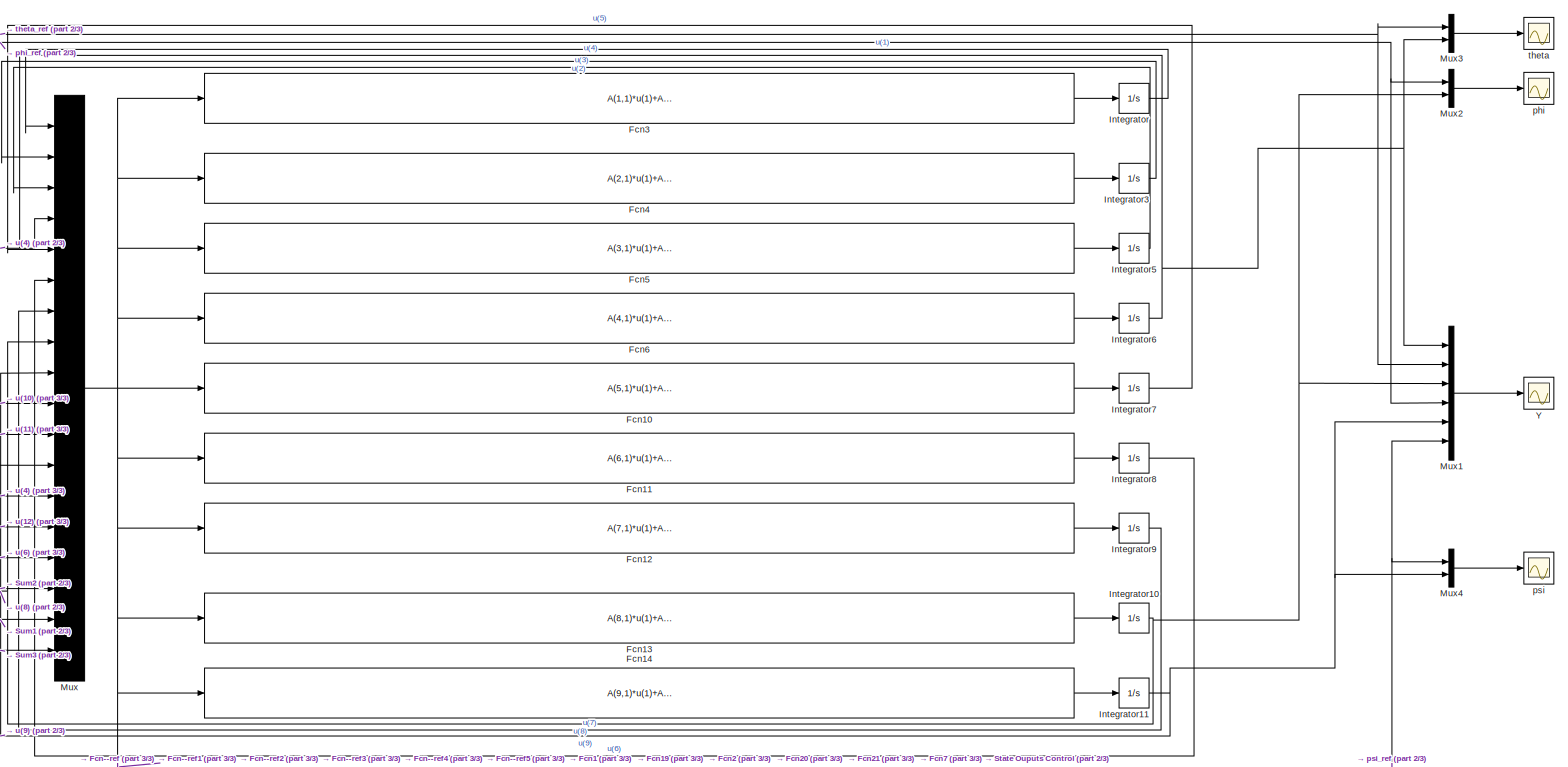
[diagram: root canvas - part 1/3, full width, top band]
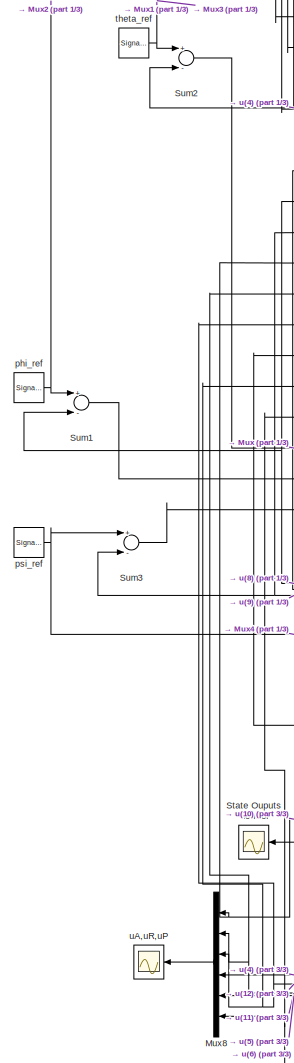
[diagram: root canvas - part 2/3, middle left region]
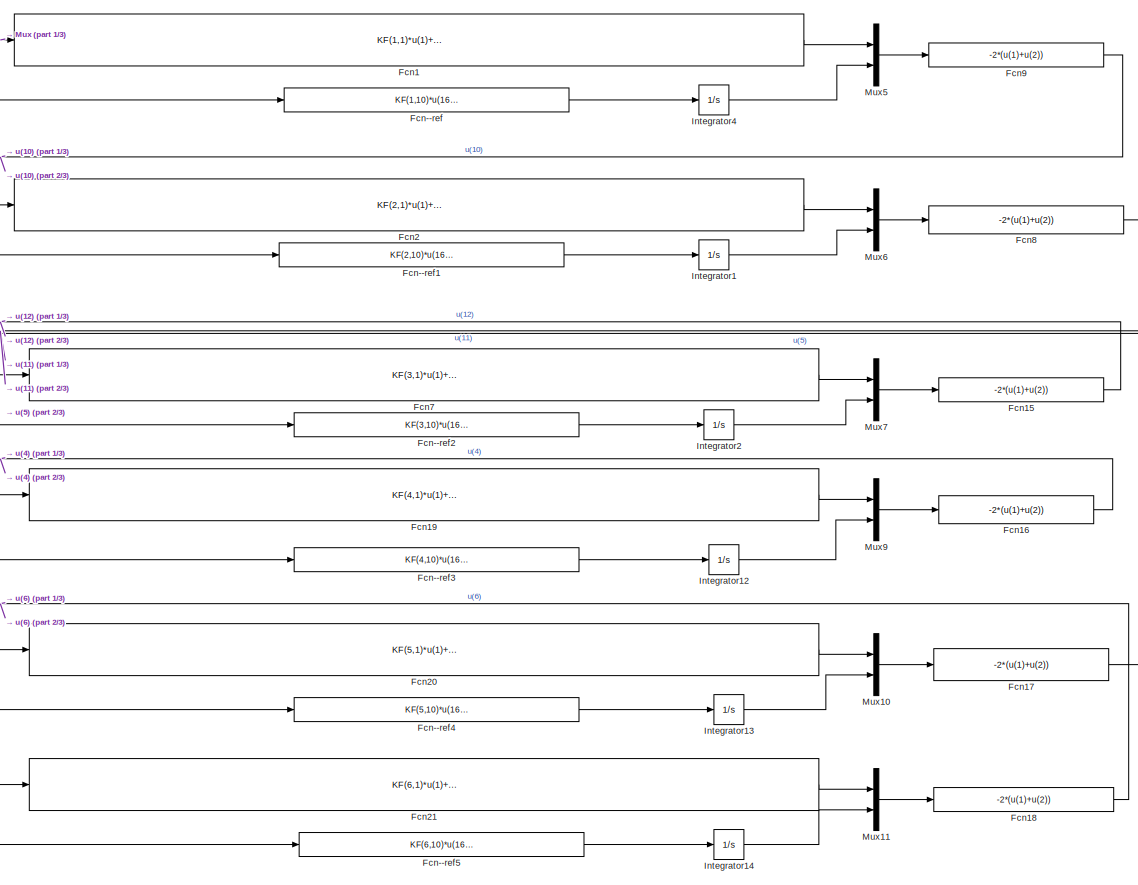
[diagram: root canvas - part 3/3, bottom center region]
MODEL slx_f6b299c26f3c
KIND model
CONFIG AbsTol = auto
CONFIG EnableMultiTasking = off
CONFIG FixedStep = auto
CONFIG MaxStep = auto
CONFIG MinStep = auto
CONFIG RelTol = 1e-7
CONFIG SampleTimeConstraint = Unconstrained
CONFIG Solver = ode45
CONFIG SolverName = ode45
CONFIG StartTime = 0.0
CONFIG StopTime = 150
BLOCK [Fcn] Fcn--ref
  Expr = KF(1,10)*u(16)+KF(1,11)*u(17)+KF(1,12)*u(18)
BLOCK [Fcn] Fcn--ref1
  Expr = KF(2,10)*u(16)+KF(2,11)*u(17)+KF(2,12)*u(18)
BLOCK [Fcn] Fcn--ref2
  Expr = KF(3,10)*u(16)+KF(3,11)*u(17)+KF(3,12)*u(18)
BLOCK [Fcn] Fcn--ref3
  Expr = KF(4,10)*u(16)+KF(4,11)*u(17)+KF(4,12)*u(18)
BLOCK [Fcn] Fcn--ref4
  Expr = KF(5,10)*u(16)+KF(5,11)*u(17)+KF(5,12)*u(18)
BLOCK [Fcn] Fcn--ref5
  Expr = KF(6,10)*u(16)+KF(6,11)*u(17)+KF(6,12)*u(18)
BLOCK [Fcn] Fcn1
  Expr = KF(1,1)*u(1)+KF(1,2)*u(2)+KF(1,3)*u(3)+KF(1,4)*u(4)+KF(1,5)*u(5)+KF(1,6)*u(6)+KF(1,7)*u(7)+KF(1,8)*u(8)+KF(1,9)*u(9)+KF(1,13)*u(16)+KF(1,14)*u(17)+KF(1,15)*u(18)
BLOCK [Fcn] Fcn10
  Expr = A(5,1)*u(1)+A(5,2)*u(2)+A(5,3)*u(3)+A(5,4)*u(4)+A(5,5)*u(5)+A(5,6)*u(6)+A(5,7)*u(7)+A(5,8)*u(8)+A(5,9)*u(9)+B(5,1)*u(10)+B(5,2)*u(11)+B(5,3)*u(12)+B(5,4)*u(13)+B(5,5)*u(14)+B(5,6)*u(15)
BLOCK [Fcn] Fcn11
  Expr = A(6,1)*u(1)+A(6,2)*u(2)+A(6,3)*u(3)+A(6,4)*u(4)+A(6,5)*u(5)+A(6,6)*u(6)+A(6,7)*u(7)+A(6,8)*u(8)+A(6,9)*u(9)+B(6,1)*u(10)+B(6,2)*u(11)+B(6,3)*u(12)+B(6,4)*u(13)+B(6,5)*u(14)+B(6,6)*u(15)
BLOCK [Fcn] Fcn12
  Expr = A(7,1)*u(1)+A(7,2)*u(2)+A(7,3)*u(3)+A(1,4)*u(4)+A(7,5)*u(5)+A(7,6)*u(6)+A(7,7)*u(7)+A(7,8)*u(8)+A(7,9)*u(9)+B(7,1)*u(10)+B(7,2)*u(11)+B(7,3)*u(12)+B(7,4)*u(13)+B(7,5)*u(14)+B(7,6)*u(15)
BLOCK [Fcn] Fcn13
  Expr = A(8,1)*u(1)+A(8,2)*u(2)+A(8,3)*u(3)+A(8,4)*u(4)+A(8,5)*u(5)+A(8,6)*u(6)+A(8,7)*u(7)+A(8,8)*u(8)+A(8,9)*u(9)+B(8,1)*u(10)+B(8,2)*u(11)+B(8,3)*u(12)+B(8,4)*u(13)+B(8,5)*u(14)+B(8,6)*u(15)
BLOCK [Fcn] Fcn14
  Expr = A(9,1)*u(1)+A(9,2)*u(2)+A(9,3)*u(3)+A(9,4)*u(4)+A(9,5)*u(5)+A(9,6)*u(6)+A(9,7)*u(7)+A(9,8)*u(8)+A(9,9)*u(9)+B(9,1)*u(10)+B(9,2)*u(11)+B(9,3)*u(12)+B(9,4)*u(13)+B(9,5)*u(14)+B(9,6)*u(15)
BLOCK [Fcn] Fcn15
  Expr = -2*(u(1)+u(2))
BLOCK [Fcn] Fcn16
  Expr = -2*(u(1)+u(2))
BLOCK [Fcn] Fcn17
  Expr = -2*(u(1)+u(2))
BLOCK [Fcn] Fcn18
  Expr = -2*(u(1)+u(2))
BLOCK [Fcn] Fcn19
  Expr = KF(4,1)*u(1)+KF(4,2)*u(2)+KF(4,3)*u(3)+KF(4,4)*u(4)+KF(4,5)*u(5)+KF(4,6)*u(6)+KF(4,7)*u(7)+KF(4,8)*u(8)+KF(4,9)*u(9)+KF(4,13)*u(16)+KF(4,14)*u(17)+KF(4,15)*u(18)
BLOCK [Fcn] Fcn2
  Expr = KF(2,1)*u(1)+KF(2,2)*u(2)+KF(2,3)*u(3)+KF(2,4)*u(4)+KF(2,5)*u(5)+KF(2,6)*u(6)+KF(2,7)*u(7)+KF(2,8)*u(8)+KF(2,9)*u(9)+KF(2,13)*u(16)+KF(2,14)*u(17)+KF(2,15)*u(18)
BLOCK [Fcn] Fcn20
  Expr = KF(5,1)*u(1)+KF(5,2)*u(2)+KF(5,3)*u(3)+KF(5,4)*u(4)+KF(5,5)*u(5)+KF(5,6)*u(6)+KF(5,7)*u(7)+KF(5,8)*u(8)+KF(5,9)*u(9)+KF(5,13)*u(16)+KF(5,14)*u(17)+KF(5,15)*u(18)
BLOCK [Fcn] Fcn21
  Expr = KF(6,1)*u(1)+KF(6,2)*u(2)+KF(6,3)*u(3)+KF(6,4)*u(4)+KF(6,5)*u(5)+KF(6,6)*u(6)+KF(6,7)*u(7)+KF(6,8)*u(8)+KF(6,9)*u(9)+KF(6,13)*u(16)+KF(6,14)*u(17)+KF(6,15)*u(18)
BLOCK [Fcn] Fcn3
  Expr = A(1,1)*u(1)+A(1,2)*u(2)+A(1,3)*u(3)+A(1,4)*u(4)+A(1,5)*u(5)+A(1,6)*u(6)+A(1,7)*u(7)+A(1,8)*u(8)+A(1,9)*u(9)+B(1,1)*u(10)+B(1,2)*u(11)+B(1,3)*u(12)+B(1,4)*u(13)+B(1,5)*u(14)+B(1,6)*u(15)
BLOCK [Fcn] Fcn4
  Expr = A(2,1)*u(1)+A(2,2)*u(2)+A(2,3)*u(3)+A(2,4)*u(4)+A(2,5)*u(5)+A(2,6)*u(6)+A(2,7)*u(7)+A(2,8)*u(8)+A(2,9)*u(9)+B(2,1)*u(10)+B(2,2)*u(11)+B(2,3)*u(12)+B(2,4)*u(13)+B(2,5)*u(14)+B(2,6)*u(15)
BLOCK [Fcn] Fcn5
  Expr = A(3,1)*u(1)+A(3,2)*u(2)+A(3,3)*u(3)+A(3,4)*u(4)+A(3,5)*u(5)+A(3,6)*u(6)+A(3,7)*u(7)+A(3,8)*u(8)+A(3,9)*u(9)+B(3,1)*u(10)+B(3,2)*u(11)+B(3,3)*u(12)+B(3,4)*u(13)+B(3,5)*u(14)+B(3,6)*u(15)
BLOCK [Fcn] Fcn6
  Expr = A(4,1)*u(1)+A(4,2)*u(2)+A(4,3)*u(3)+A(4,4)*u(4)+A(4,5)*u(5)+A(4,6)*u(6)+A(4,7)*u(7)+A(4,8)*u(8)+A(4,9)*u(9)+B(4,1)*u(10)+B(4,2)*u(11)+B(4,3)*u(12)+B(4,4)*u(13)+B(4,5)*u(14)+B(4,6)*u(15)
BLOCK [Fcn] Fcn7
  Expr = KF(3,1)*u(1)+KF(3,2)*u(2)+KF(3,3)*u(3)+KF(3,4)*u(4)+KF(3,5)*u(5)+KF(3,6)*u(6)+KF(3,7)*u(7)+KF(3,8)*u(8)+KF(3,9)*u(9)+KF(3,13)*u(16)+KF(3,14)*u(17)+KF(3,15)*u(18)
BLOCK [Fcn] Fcn8
  Expr = -2*(u(1)+u(2))
BLOCK [Fcn] Fcn9
  Expr = -2*(u(1)+u(2))
BLOCK [Integrator] Integrator
  Ports = [1, 1]
BLOCK [Integrator] Integrator1
  Ports = [1, 1]
BLOCK [Integrator] Integrator10
  Ports = [1, 1]
BLOCK [Integrator] Integrator11
  Ports = [1, 1]
BLOCK [Integrator] Integrator12
  Ports = [1, 1]
BLOCK [Integrator] Integrator13
  Ports = [1, 1]
BLOCK [Integrator] Integrator14
  Ports = [1, 1]
BLOCK [Integrator] Integrator2
  Ports = [1, 1]
BLOCK [Integrator] Integrator3
  Ports = [1, 1]
BLOCK [Integrator] Integrator4
  Ports = [1, 1]
BLOCK [Integrator] Integrator5
  Ports = [1, 1]
BLOCK [Integrator] Integrator6
  Ports = [1, 1]
BLOCK [Integrator] Integrator7
  Ports = [1, 1]
BLOCK [Integrator] Integrator8
  Ports = [1, 1]
BLOCK [Integrator] Integrator9
  Ports = [1, 1]
BLOCK [Mux] Mux
  DisplayOption = bar
  Inputs = 18
  Ports = [18, 1]
BLOCK [Mux] Mux1
  DisplayOption = bar
  Inputs = 6
  Ports = [6, 1]
BLOCK [Mux] Mux10
  DisplayOption = bar
  Inputs = 2
  Ports = [2, 1]
BLOCK [Mux] Mux11
  DisplayOption = bar
  Inputs = 2
  Ports = [2, 1]
BLOCK [Mux] Mux2
  DisplayOption = bar
  Inputs = 2
  Ports = [2, 1]
BLOCK [Mux] Mux3
  DisplayOption = bar
  Inputs = 2
  Ports = [2, 1]
BLOCK [Mux] Mux4
  DisplayOption = bar
  Inputs = 2
  Ports = [2, 1]
BLOCK [Mux] Mux5
  DisplayOption = bar
  Inputs = 2
  Ports = [2, 1]
BLOCK [Mux] Mux6
  DisplayOption = bar
  Inputs = 2
  Ports = [2, 1]
BLOCK [Mux] Mux7
  DisplayOption = bar
  Inputs = 2
  Ports = [2, 1]
BLOCK [Mux] Mux8
  DisplayOption = bar
  Inputs = 6
  Ports = [6, 1]
BLOCK [Mux] Mux9
  DisplayOption = bar
  Inputs = 2
  Ports = [2, 1]
BLOCK [Scope] State Ouputs Control
  Floating = off
  NumInputPorts = 1
  Ports = [1]
  ScopeSpecificationString = Simulink.scopes.TimeScopeBlockCfg('CurrentConfiguration', extmgr.ConfigurationSet(extmgr.Configuration('Core','General UI',true),extmgr.Configuration('Core','Source UI',true),extmgr.Configuration('Sources','WiredSimulink',true,'DataLoggingVariableName','ScopeData1','DataLogging',true,'DataLoggingSaveFormat','Array'),extmgr.Configuration('Visuals','Time Domain',true,'SerializedDisplays',{struct('Mi...<+1633ch>
BLOCK [Sum] Sum1
  InputSameDT = off
  Inputs = +-
  OutDataTypeStr = Inherit: Inherit via internal rule
  Ports = [2, 1]
  SaturateOnIntegerOverflow = off
BLOCK [Sum] Sum2
  InputSameDT = off
  Inputs = +-
  OutDataTypeStr = Inherit: Inherit via internal rule
  Ports = [2, 1]
  SaturateOnIntegerOverflow = off
BLOCK [Sum] Sum3
  InputSameDT = off
  Inputs = +-
  OutDataTypeStr = Inherit: Inherit via internal rule
  Ports = [2, 1]
  SaturateOnIntegerOverflow = off
BLOCK [Scope] Y
  Floating = off
  NumInputPorts = 1
  Ports = [1]
  ScopeSpecificationString = Simulink.scopes.TimeScopeBlockCfg('CurrentConfiguration', extmgr.ConfigurationSet(extmgr.Configuration('Core','General UI',true),extmgr.Configuration('Core','Source UI',true),extmgr.Configuration('Sources','WiredSimulink',true,'DataLoggingVariableName','ScopeData2'),extmgr.Configuration('Visuals','Time Domain',true,'SerializedDisplays',{struct('MinYLimReal','-0.12504','MaxYLimReal','0.12504','YLab...<+1480ch>
BLOCK [Scope] phi
  Floating = off
  NumInputPorts = 1
  Ports = [1]
  ScopeSpecificationString = Simulink.scopes.TimeScopeBlockCfg('CurrentConfiguration', extmgr.ConfigurationSet(extmgr.Configuration('Core','General UI',true),extmgr.Configuration('Core','Source UI',true),extmgr.Configuration('Sources','WiredSimulink',true,'DataLoggingVariableName','ScopeData3'),extmgr.Configuration('Visuals','Time Domain',true,'SerializedDisplays',{struct('MinYLimReal','-0.12515','MaxYLimReal','0.12515','YLab...<+1402ch>
BLOCK [SignalGenerator] phi_ref
  Amplitude = 0.1
  Frequency = 0.02
  Ports = [0, 1]
  WaveForm = square
BLOCK [Scope] psi
  Floating = off
  NumInputPorts = 1
  Ports = [1]
  ScopeSpecificationString = Simulink.scopes.TimeScopeBlockCfg('CurrentConfiguration', extmgr.ConfigurationSet(extmgr.Configuration('Core','General UI',true),extmgr.Configuration('Core','Source UI',true),extmgr.Configuration('Sources','WiredSimulink',true,'DataLoggingVariableName','ScopeData4'),extmgr.Configuration('Visuals','Time Domain',true,'SerializedDisplays',{struct('MinYLimReal','-0.02504','MaxYLimReal','0.02503','YLab...<+1402ch>
BLOCK [SignalGenerator] psi_ref
  Amplitude = 0.02
  Frequency = 0.02
  Ports = [0, 1]
  WaveForm = square
BLOCK [Scope] theta
  Floating = off
  NumInputPorts = 1
  Ports = [1]
  ScopeSpecificationString = Simulink.scopes.TimeScopeBlockCfg('CurrentConfiguration', extmgr.ConfigurationSet(extmgr.Configuration('Core','General UI',true),extmgr.Configuration('Core','Source UI',true),extmgr.Configuration('Sources','WiredSimulink',true,'DataLoggingVariableName','ScopeData5'),extmgr.Configuration('Visuals','Time Domain',true,'SerializedDisplays',{struct('MinYLimReal','-0.12656','MaxYLimReal','0.12656','YLab...<+1446ch>
BLOCK [SignalGenerator] theta_ref
  Amplitude = 0.1
  Frequency = 0.02
  Ports = [0, 1]
  WaveForm = square
BLOCK [Scope] uA,uR,uP
  Floating = off
  NumInputPorts = 1
  Ports = [1]
  ScopeSpecificationString = Simulink.scopes.TimeScopeBlockCfg('CurrentConfiguration', extmgr.ConfigurationSet(extmgr.Configuration('Core','General UI',true),extmgr.Configuration('Core','Source UI',true),extmgr.Configuration('Sources','WiredSimulink',true,'DataLogging',true,'DataLoggingSaveFormat','Array'),extmgr.Configuration('Visuals','Time Domain',true,'SerializedDisplays',{struct('MinYLimReal','-0.93742','MaxYLimReal','0....<+1531ch>
LINE Fcn--ref1:1 -> Integrator1:1
LINE Fcn--ref2:1 -> Integrator2:1
LINE Fcn--ref3:1 -> Integrator12:1
LINE Fcn--ref4:1 -> Integrator13:1
LINE Fcn--ref5:1 -> Integrator14:1
LINE Fcn--ref:1 -> Integrator4:1
LINE Fcn10:1 -> Integrator7:1
LINE Fcn11:1 -> Integrator8:1
LINE Fcn12:1 -> Integrator9:1
LINE Fcn13:1 -> Integrator10:1
LINE Fcn14:1 -> Integrator11:1
NET Fcn15:1 -> Mux8:3, Mux:12, Mux:14
NET Fcn16:1 -> Mux8:4, Mux:13
LINE Fcn17:1 -> Mux8:5
NET Fcn18:1 -> Mux8:6, Mux:15
LINE Fcn19:1 -> Mux9:1
LINE Fcn1:1 -> Mux5:1
LINE Fcn20:1 -> Mux10:1
LINE Fcn21:1 -> Mux11:1
LINE Fcn2:1 -> Mux6:1
LINE Fcn3:1 -> Integrator:1
LINE Fcn4:1 -> Integrator3:1
LINE Fcn5:1 -> Integrator5:1
LINE Fcn6:1 -> Integrator6:1
LINE Fcn7:1 -> Mux7:1
NET Fcn8:1 -> Mux8:2, Mux:11
NET Fcn9:1 -> Mux8:1, Mux:10
NET Integrator10:1 -> Mux1:3, Mux2:2, Mux:8, Sum1:2
NET Integrator11:1 -> Mux1:5, Mux4:2, Mux:9, Sum3:2
LINE Integrator12:1 -> Mux9:2
LINE Integrator13:1 -> Mux10:2
LINE Integrator14:1 -> Mux11:2
LINE Integrator1:1 -> Mux6:2
LINE Integrator2:1 -> Mux7:2
LINE Integrator3:1 -> Mux:2
LINE Integrator4:1 -> Mux5:2
LINE Integrator5:1 -> Mux:3
NET Integrator6:1 -> Mux1:1, Mux3:2, Mux:4, Sum2:2
LINE Integrator7:1 -> Mux:5
LINE Integrator8:1 -> Mux:6
LINE Integrator9:1 -> Mux:7
LINE Integrator:1 -> Mux:1
LINE Mux10:1 -> Fcn17:1
LINE Mux11:1 -> Fcn18:1
LINE Mux1:1 -> Y:1
LINE Mux2:1 -> phi:1
LINE Mux3:1 -> theta:1
LINE Mux4:1 -> psi:1
LINE Mux5:1 -> Fcn9:1
LINE Mux6:1 -> Fcn8:1
LINE Mux7:1 -> Fcn15:1
LINE Mux8:1 -> uA,uR,uP:1
LINE Mux9:1 -> Fcn16:1
NET Mux:1 -> Fcn--ref1:1, Fcn--ref2:1, Fcn--ref3:1, Fcn--ref4:1, Fcn--ref5:1, Fcn--ref:1, Fcn10:1, Fcn11:1, Fcn12:1, Fcn13:1, Fcn14:1, Fcn19:1, Fcn1:1, Fcn20:1, Fcn21:1, Fcn2:1, Fcn3:1, Fcn4:1, Fcn5:1, Fcn6:1, Fcn7:1, State Ouputs Control:1
LINE Sum1:1 -> Mux:17
LINE Sum2:1 -> Mux:16
LINE Sum3:1 -> Mux:18
NET phi_ref:1 -> Mux1:4, Mux2:1, Sum1:1
NET psi_ref:1 -> Mux1:6, Mux4:1, Sum3:1
NET theta_ref:1 -> Mux1:2, Mux3:1, Sum2:1
note: NET lines group one-source signal fan-out (src -> all destinations, sorted); 1:1 wires keep LINE
